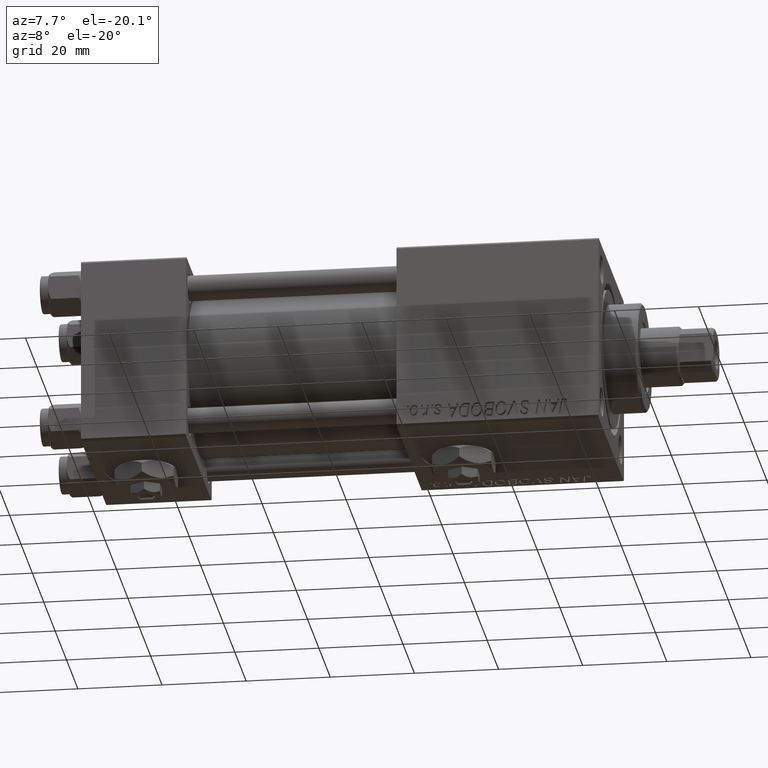
[diagram: clean part render]
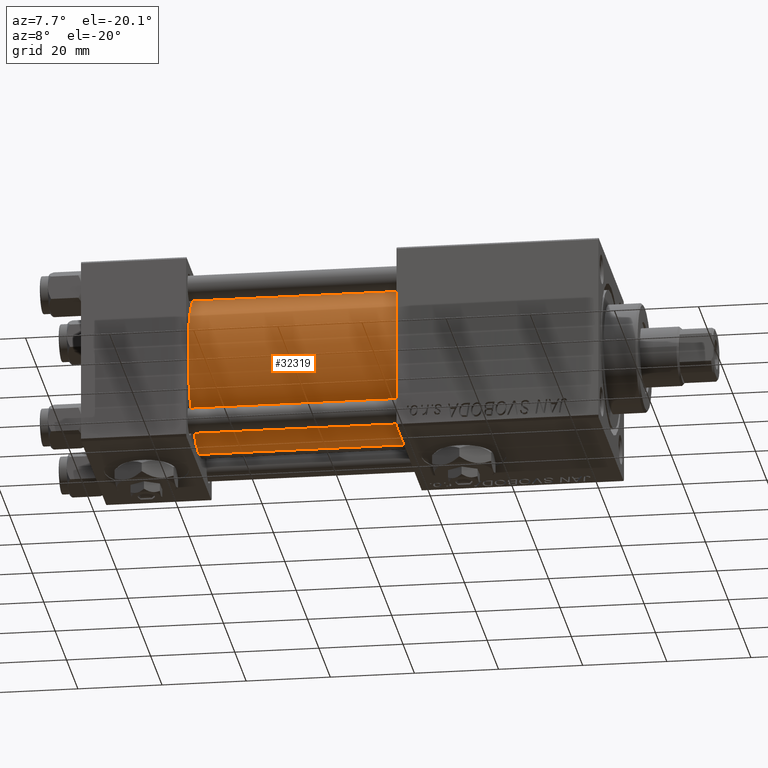
[diagram: same view with one face highlighted and labeled with its STEP entity id]
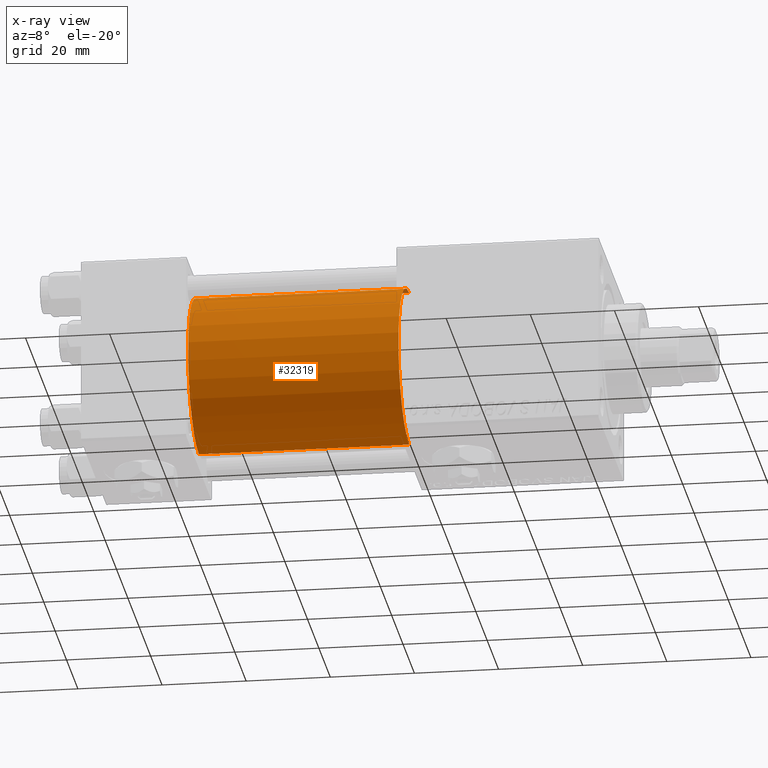
[diagram: x-ray of the same camera — body ghosted, the highlighted face saturated]
A machine part, auxiliary view. The second image highlights one B-rep face of the part: STEP entity #32319.
The next image is the same camera in x-ray: the body ghosted, the highlighted face saturated — about 0% of this face is hidden behind the body in this view.
In plain terms, the highlighted cylindrical surface (partial cylindrical patch) has radius 19 mm, axis along (-1, -0, -0).
Its self-contained STEP definition (entity closure, byte-faithful):
#621 = VERTEX_POINT ( 'NONE', #42104 ) ;
#1765 = DIRECTION ( 'NONE',  ( -1.000000000000000000, -0.000000000000000000, -0.000000000000000000 ) ) ;
#4585 = ORIENTED_EDGE ( 'NONE', *, *, #10512, .T. ) ;
#8216 = VERTEX_POINT ( 'NONE', #42422 ) ;
#8296 = DIRECTION ( 'NONE',  ( 0.000000000000000000, 0.000000000000000000, -1.000000000000000000 ) ) ;
#8840 = ORIENTED_EDGE ( 'NONE', *, *, #13678, .F. ) ;
#9148 = DIRECTION ( 'NONE',  ( 0.000000000000000000, 0.000000000000000000, 1.000000000000000000 ) ) ;
#9659 = DIRECTION ( 'NONE',  ( -1.000000000000000000, -0.000000000000000000, -0.000000000000000000 ) ) ;
#10428 = CARTESIAN_POINT ( 'NONE',  ( 75.00000000000001421, -2.752562955852396712E-16, -19.00000000000000000 ) ) ;
#10512 = EDGE_CURVE ( 'NONE', #50520, #621, #36253, .T. ) ;
#10685 = CARTESIAN_POINT ( 'NONE',  ( 25.00000000000000000, -2.752562955852396712E-16, -19.00000000000000000 ) ) ;
#13402 = DIRECTION ( 'NONE',  ( 1.000000000000000000, -0.000000000000000000, 0.000000000000000000 ) ) ;
#13678 = EDGE_CURVE ( 'NONE', #8216, #50126, #22075, .T. ) ;
#13992 = CIRCLE ( 'NONE', #40981, 19.00000000000000000 ) ;
#16942 = CARTESIAN_POINT ( 'NONE',  ( 75.00000000000001421, -2.602085213965210642E-15, 19.00000000000000000 ) ) ;
#17974 = ORIENTED_EDGE ( 'NONE', *, *, #24673, .T. ) ;
#19963 = EDGE_CURVE ( 'NONE', #50520, #8216, #13992, .T. ) ;
#20189 = CARTESIAN_POINT ( 'NONE',  ( 75.00000000000001421, -2.602085213965210642E-15, 0.000000000000000000 ) ) ;
#22075 = LINE ( 'NONE', #10428, #40093 ) ;
#24673 = EDGE_CURVE ( 'NONE', #621, #50126, #34444, .T. ) ;
#26023 = CARTESIAN_POINT ( 'NONE',  ( 75.00000000000001421, -2.602085213965210642E-15, 0.000000000000000000 ) ) ;
#29985 = FACE_OUTER_BOUND ( 'NONE', #44953, .T. ) ;
#32038 = CARTESIAN_POINT ( 'NONE',  ( 75.00000000000001421, -2.602085213965210642E-15, 19.00000000000000000 ) ) ;
#32319 = ADVANCED_FACE ( 'NONE', ( #29985 ), #33423, .T. ) ;
#33423 = CYLINDRICAL_SURFACE ( 'NONE', #52238, 19.00000000000000000 ) ;
#33586 = AXIS2_PLACEMENT_3D ( 'NONE', #37424, #13402, #41379 ) ;
#34444 = CIRCLE ( 'NONE', #33586, 19.00000000000000000 ) ;
#36253 = LINE ( 'NONE', #32038, #47777 ) ;
#36273 = DIRECTION ( 'NONE',  ( 1.000000000000000000, 0.000000000000000000, 0.000000000000000000 ) ) ;
#37424 = CARTESIAN_POINT ( 'NONE',  ( 25.00000000000000000, -2.602085213965210642E-15, 0.000000000000000000 ) ) ;
#40093 = VECTOR ( 'NONE', #1765, 1000.000000000000000 ) ;
#40981 = AXIS2_PLACEMENT_3D ( 'NONE', #20189, #36273, #8296 ) ;
#41379 = DIRECTION ( 'NONE',  ( 0.000000000000000000, 0.000000000000000000, 1.000000000000000000 ) ) ;
#42104 = CARTESIAN_POINT ( 'NONE',  ( 25.00000000000000000, -2.602085213965210642E-15, 19.00000000000000000 ) ) ;
#42422 = CARTESIAN_POINT ( 'NONE',  ( 75.00000000000001421, -2.752562955852396712E-16, -19.00000000000000000 ) ) ;
#44953 = EDGE_LOOP ( 'NONE', ( #8840, #48293, #4585, #17974 ) ) ;
#47777 = VECTOR ( 'NONE', #48135, 1000.000000000000000 ) ;
#48135 = DIRECTION ( 'NONE',  ( -1.000000000000000000, -0.000000000000000000, -0.000000000000000000 ) ) ;
#48293 = ORIENTED_EDGE ( 'NONE', *, *, #19963, .F. ) ;
#50126 = VERTEX_POINT ( 'NONE', #10685 ) ;
#50520 = VERTEX_POINT ( 'NONE', #16942 ) ;
#52238 = AXIS2_PLACEMENT_3D ( 'NONE', #26023, #9659, #9148 ) ;